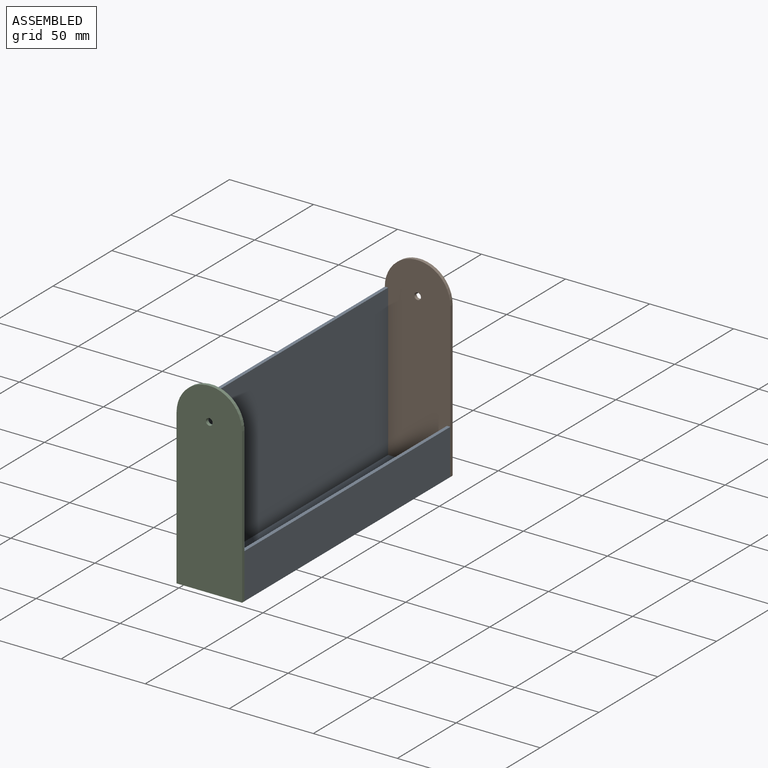
[diagram: assembled view]
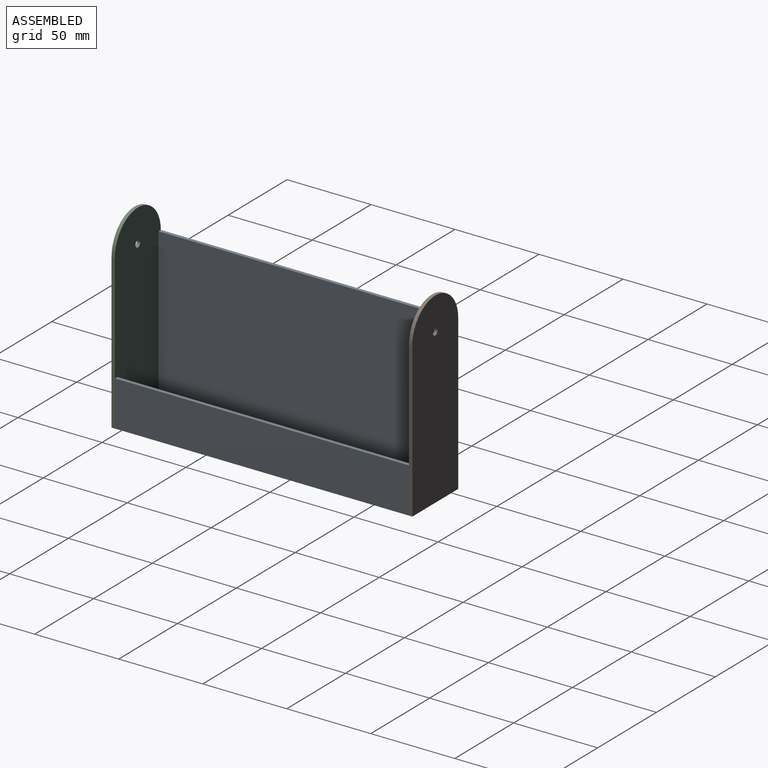
[diagram: assembled view, second angle]
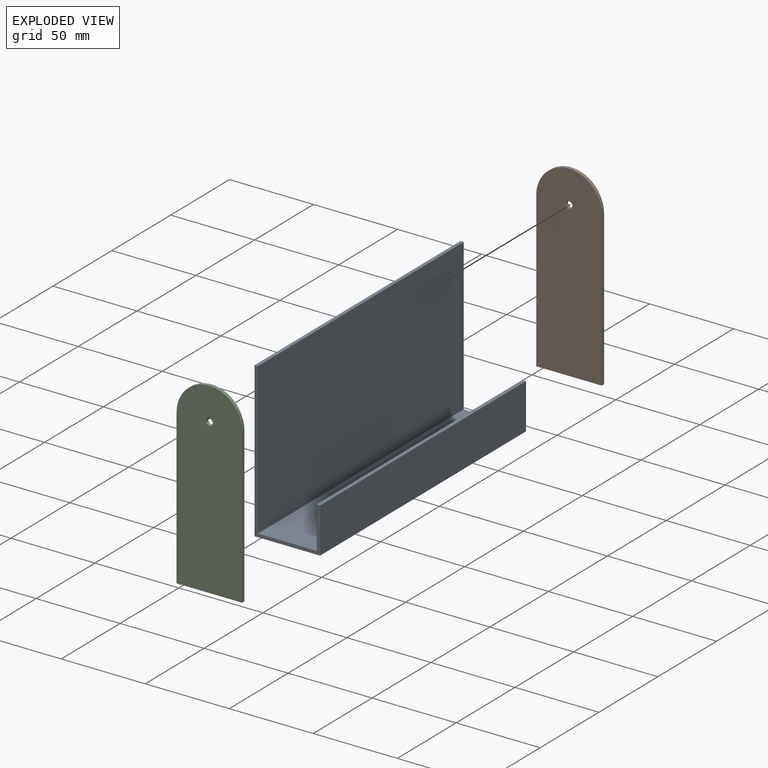
[diagram: exploded view]
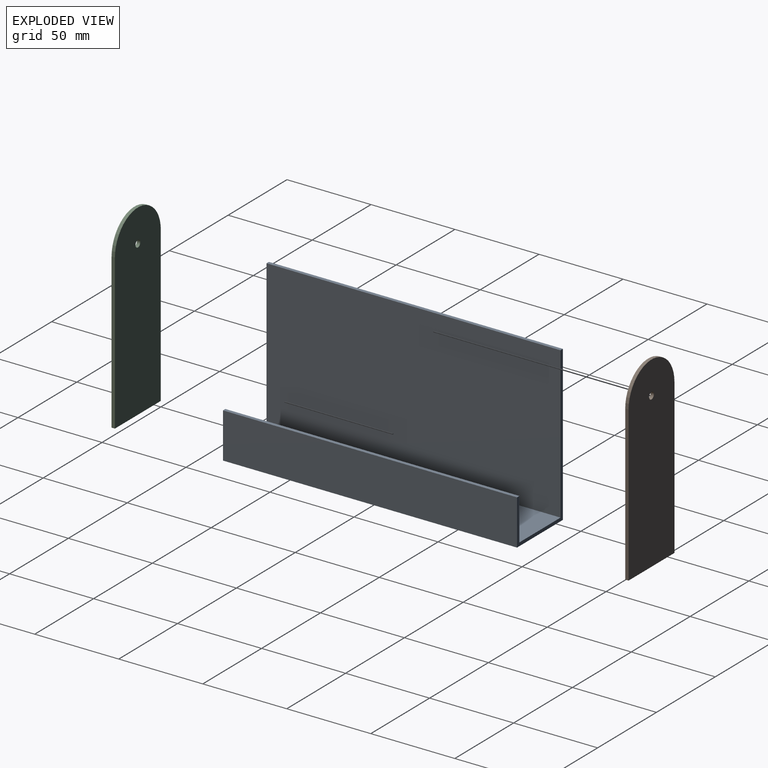
[diagram: exploded view, second angle]
ASSEMBLY  parts=3 mates=2
PART A: 10 faces, bbox 39x175x92 mm
  f0: plane 175x27mm, normal (1,0,0), area 4725mm2, adj f1,f7,f8,f9
  f1: plane 175x2mm, normal (0,0,1), area 350mm2, adj f0,f2,f8,f9
  f2: plane 175x25mm, normal (-1,0,0), area 4375mm2, adj f1,f3,f8,f9
  f3: plane 175x35mm, normal (0,0,1), area 6125mm2, adj f2,f4,f8,f9
  f4: plane 175x90mm, normal (1,0,0), area 15750mm2, adj f3,f5,f8,f9
  f5: plane 175x2mm, normal (0,0,1), area 350mm2, adj f4,f6,f8,f9
  f6: plane 175x92mm, normal (-1,0,0), area 16100mm2, adj f5,f7,f8,f9
  f7: plane 175x39mm, normal (0,0,-1), area 6825mm2, adj f0,f6,f8,f9
  f8: plane 92x39mm, normal (0,1,0), area 308mm2, adj f0,f1,f2,f3,f4,f5,f6,f7
  f9: plane 92x39mm, normal (0,-1,0), area 308mm2, adj f0,f1,f2,f3,f4,f5,f6,f7
PART B: 7 faces, bbox 39x2x111.5 mm
  f0: cylinder r=19.5mm len=39mm, axis (0,1,0), area 122.5mm2, adj f1,f4,f5,f6
  f1: plane 92x2mm, normal (-1,0,0), area 184mm2, adj f0,f2,f5,f6
  f2: plane 39x2mm, normal (0,0,-1), area 78mm2, adj f1,f4,f5,f6
  f3: cylinder r=2mm len=4mm, axis (0,1,0), area 25.1mm2, adj f5,f6
  f4: plane 92x2mm, normal (1,0,0), area 184mm2, adj f0,f2,f5,f6
  f5: plane 111.5x39mm, normal (0,-1,0), area 4172.7mm2, adj f0,f1,f2,f3,f4
  f6: plane 111.5x39mm, normal (0,1,0), area 4172.7mm2, adj f0,f1,f2,f3,f4
PART C: same geometry as B
PLACE A t=(2,0,2)mm
PLACE B rot(axis=(0,0,1),180deg) t=(37,175,2)mm
PLACE C t=(2,0,2)mm
MATE fastened A.f9 <-> C.f6  axis (0,-1,0) through (0,0,0)mm
MATE fastened A.f8 <-> B.f6  axis (0,1,0) through (0,175,0)mm
